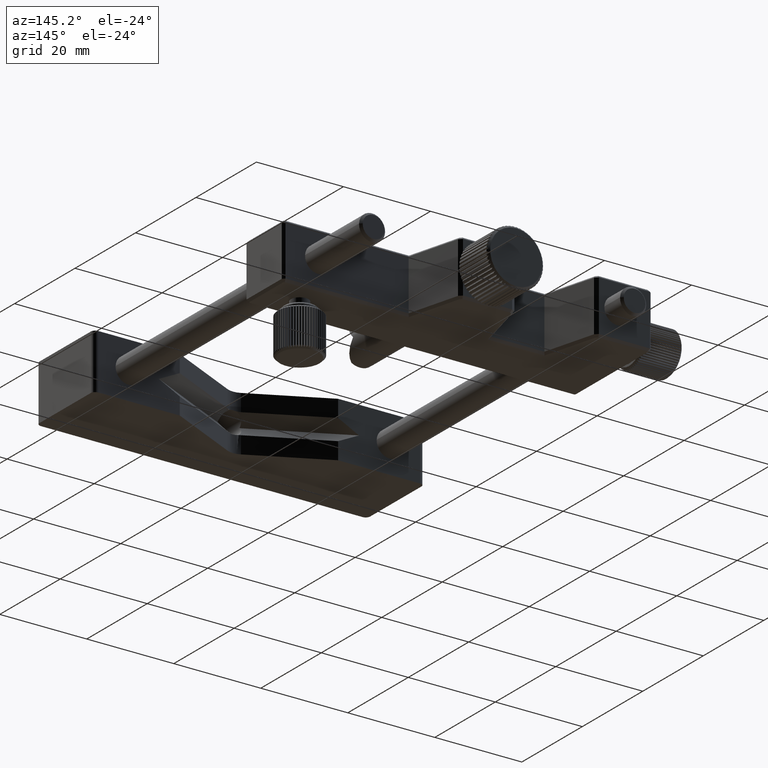
[diagram: clean part render]
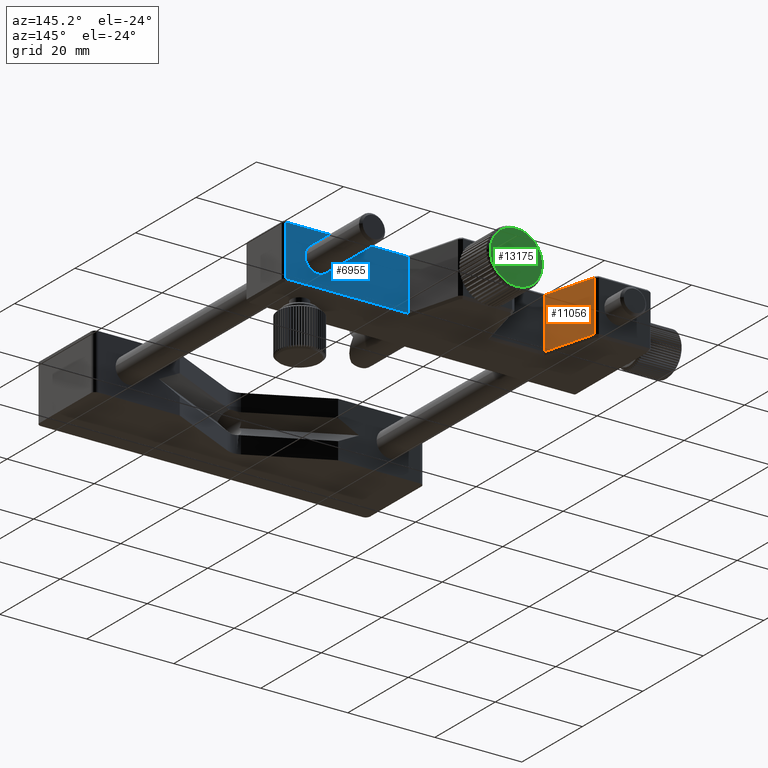
[diagram: same view with three faces highlighted in distinct colors, each labeled with its STEP entity id]
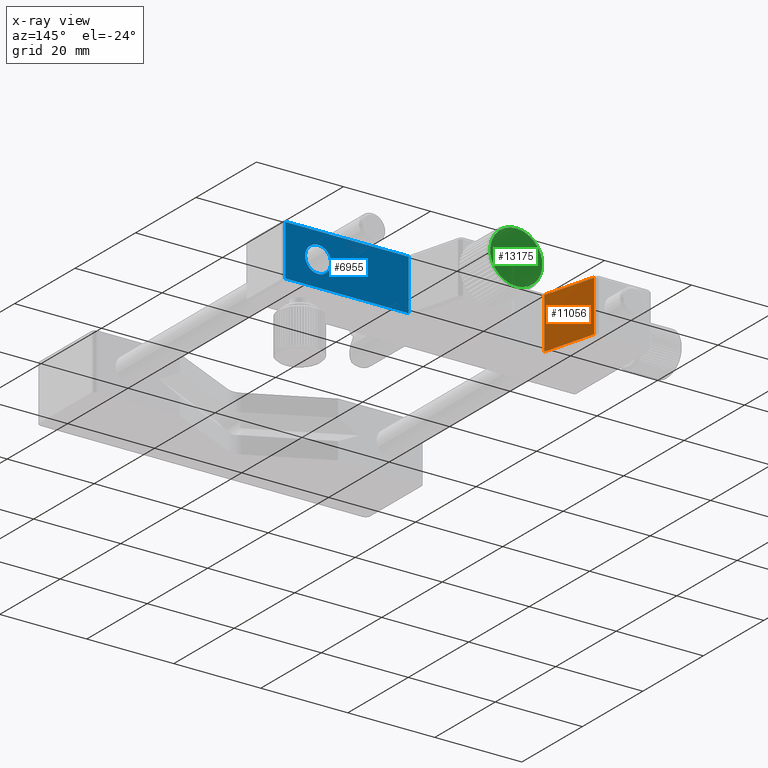
[diagram: x-ray of the same camera — body ghosted, the three highlighted faces saturated]
A machine part, auxiliary view with three faces highlighted in distinct colors.
The next image is the same camera in x-ray (body ghosted, the three faces saturated) — at least one of them is partly hidden behind the body in this view.
Their STEP definitions:

[orange] entity #11056 — the highlighted planar face has unit normal (0.9685, 0.2488, -0).
#597 = DIRECTION ( 'NONE',  ( 0.9685456737916890990, 0.2488358450452889947, -7.321851598623130857E-17 ) ) ;
#710 = LINE ( 'NONE', #6671, #1872 ) ;
#748 = ORIENTED_EDGE ( 'NONE', *, *, #1622, .T. ) ;
#797 = DIRECTION ( 'NONE',  ( 0.2488358450452889947, -0.9685456737916890990, -3.081487911019580102E-33 ) ) ;
#1063 = VERTEX_POINT ( 'NONE', #11455 ) ;
#1502 = PLANE ( 'NONE',  #6892 ) ;
#1622 = EDGE_CURVE ( 'NONE', #1063, #14236, #12075, .T. ) ;
#1646 = ORIENTED_EDGE ( 'NONE', *, *, #3456, .F. ) ;
#1811 = FACE_OUTER_BOUND ( 'NONE', #9658, .T. ) ;
#1872 = VECTOR ( 'NONE', #8064, 1000.000000000000000 ) ;
#2453 = DIRECTION ( 'NONE',  ( -0.2488358450452889947, 0.9685456737916890990, 3.081487911019580102E-33 ) ) ;
#2850 = LINE ( 'NONE', #7826, #9342 ) ;
#3151 = VECTOR ( 'NONE', #2453, 1000.000000000000000 ) ;
#3456 = EDGE_CURVE ( 'NONE', #4336, #14236, #710, .T. ) ;
#4336 = VERTEX_POINT ( 'NONE', #9386 ) ;
#4738 = CARTESIAN_POINT ( 'NONE',  ( -51.41388888600069862, 69.11599243470411125, -5.850000000000000533 ) ) ;
#6089 = LINE ( 'NONE', #11142, #11647 ) ;
#6671 = CARTESIAN_POINT ( 'NONE',  ( -51.41388888600069862, 69.11599243470411125, 6.349999999999999645 ) ) ;
#6795 = CARTESIAN_POINT ( 'NONE',  ( -51.41388888600069862, 69.11599243470411125, 6.349999999999999645 ) ) ;
#6892 = AXIS2_PLACEMENT_3D ( 'NONE', #6795, #597, #15114 ) ;
#7826 = CARTESIAN_POINT ( 'NONE',  ( -51.41388888600069862, 69.11599243470411125, 5.850000000000000533 ) ) ;
#8064 = DIRECTION ( 'NONE',  ( -1.110223024625159992E-16, 1.378887143529729752E-16, -1.000000000000000000 ) ) ;
#9212 = CARTESIAN_POINT ( 'NONE',  ( -51.41388888600069862, 69.11599243470411125, -5.850000000000000533 ) ) ;
#9337 = EDGE_CURVE ( 'NONE', #15505, #1063, #6089, .T. ) ;
#9342 = VECTOR ( 'NONE', #797, 1000.000000000000000 ) ;
#9386 = CARTESIAN_POINT ( 'NONE',  ( -51.41388888600069862, 69.11599243470411125, 5.850000000000000533 ) ) ;
#9658 = EDGE_LOOP ( 'NONE', ( #1646, #14551, #10141, #748 ) ) ;
#9932 = DIRECTION ( 'NONE',  ( -1.110223024625159992E-16, 1.378887143529729752E-16, -1.000000000000000000 ) ) ;
#10141 = ORIENTED_EDGE ( 'NONE', *, *, #9337, .T. ) ;
#10309 = EDGE_CURVE ( 'NONE', #4336, #15505, #2850, .T. ) ;
#10341 = CARTESIAN_POINT ( 'NONE',  ( -48.33676122642629736, 57.13886477512959772, 5.850000000000000533 ) ) ;
#11056 = ADVANCED_FACE ( 'NONE', ( #1811 ), #1502, .T. ) ;
#11142 = CARTESIAN_POINT ( 'NONE',  ( -48.33676122642629736, 57.13886477512959772, 6.349999999999999645 ) ) ;
#11455 = CARTESIAN_POINT ( 'NONE',  ( -48.33676122642629736, 57.13886477512959772, -5.850000000000000533 ) ) ;
#11647 = VECTOR ( 'NONE', #9932, 1000.000000000000000 ) ;
#12075 = LINE ( 'NONE', #4738, #3151 ) ;
#14236 = VERTEX_POINT ( 'NONE', #9212 ) ;
#14551 = ORIENTED_EDGE ( 'NONE', *, *, #10309, .T. ) ;
#15114 = DIRECTION ( 'NONE',  ( 0.000000000000000000, -2.942442475395989924E-16, -1.000000000000000000 ) ) ;
#15505 = VERTEX_POINT ( 'NONE', #10341 ) ;

[blue] entity #6955 — the highlighted planar face has unit normal (0, 1, 0).
#367 = VERTEX_POINT ( 'NONE', #4146 ) ;
#857 = VERTEX_POINT ( 'NONE', #1094 ) ;
#954 = LINE ( 'NONE', #14480, #12359 ) ;
#1001 = CARTESIAN_POINT ( 'NONE',  ( -17.13676122642620214, 57.13886477512959772, 5.850000000000000533 ) ) ;
#1094 = CARTESIAN_POINT ( 'NONE',  ( 0.6665848719893747720, 57.13886477512959772, -0.1416523706789316328 ) ) ;
#1966 = DIRECTION ( 'NONE',  ( 0.000000000000000000, 0.000000000000000000, 1.000000000000000000 ) ) ;
#2595 = EDGE_CURVE ( 'NONE', #367, #2629, #6393, .T. ) ;
#2629 = VERTEX_POINT ( 'NONE', #13871 ) ;
#2940 = EDGE_CURVE ( 'NONE', #11303, #13584, #13934, .T. ) ;
#3457 = ORIENTED_EDGE ( 'NONE', *, *, #2595, .T. ) ;
#3782 = CARTESIAN_POINT ( 'NONE',  ( 11.16323877357379857, 57.13886477512959772, 6.349999999999999645 ) ) ;
#4146 = CARTESIAN_POINT ( 'NONE',  ( 11.16323877357379857, 57.13886477512959772, 5.850000000000000533 ) ) ;
#4162 = ORIENTED_EDGE ( 'NONE', *, *, #6054, .F. ) ;
#4940 = ORIENTED_EDGE ( 'NONE', *, *, #8109, .T. ) ;
#4963 = EDGE_LOOP ( 'NONE', ( #7676, #4162 ) ) ;
#5808 = CARTESIAN_POINT ( 'NONE',  ( 6.659892675158185504, 57.13886477512959772, 0.1416523706789302450 ) ) ;
#5929 = DIRECTION ( 'NONE',  ( 1.000000000000000000, -1.267838108800509999E-32, 0.000000000000000000 ) ) ;
#6024 = VECTOR ( 'NONE', #6632, 1000.000000000000000 ) ;
#6054 = EDGE_CURVE ( 'NONE', #9978, #857, #9229, .T. ) ;
#6123 = CARTESIAN_POINT ( 'NONE',  ( -17.13676122642620214, 57.13886477512959772, -5.850000000000000533 ) ) ;
#6393 = LINE ( 'NONE', #12581, #6024 ) ;
#6632 = DIRECTION ( 'NONE',  ( -1.110223024625159992E-16, 1.378887143529729752E-16, -1.000000000000000000 ) ) ;
#6955 = ADVANCED_FACE ( 'NONE', ( #13632, #7462 ), #9985, .T. ) ;
#7055 = DIRECTION ( 'NONE',  ( 1.267838108800509999E-32, 1.000000000000000000, 1.378887143529729752E-16 ) ) ;
#7418 = AXIS2_PLACEMENT_3D ( 'NONE', #8334, #15739, #1966 ) ;
#7452 = CARTESIAN_POINT ( 'NONE',  ( -17.13676122642620214, 57.13886477512959772, -5.850000000000000533 ) ) ;
#7462 = FACE_OUTER_BOUND ( 'NONE', #11686, .T. ) ;
#7676 = ORIENTED_EDGE ( 'NONE', *, *, #8563, .F. ) ;
#7677 = DIRECTION ( 'NONE',  ( -1.110223024625159992E-16, 1.378887143529729752E-16, -1.000000000000000000 ) ) ;
#8109 = EDGE_CURVE ( 'NONE', #11303, #367, #954, .T. ) ;
#8334 = CARTESIAN_POINT ( 'NONE',  ( 3.663238773573780360, 57.13886477512959772, -8.896320514301608892E-16 ) ) ;
#8394 = ORIENTED_EDGE ( 'NONE', *, *, #15132, .T. ) ;
#8563 = EDGE_CURVE ( 'NONE', #857, #9978, #14492, .T. ) ;
#9229 = CIRCLE ( 'NONE', #7418, 3.000000000000000000 ) ;
#9978 = VERTEX_POINT ( 'NONE', #5808 ) ;
#9985 = PLANE ( 'NONE',  #10047 ) ;
#10047 = AXIS2_PLACEMENT_3D ( 'NONE', #3782, #12421, #13714 ) ;
#10289 = CARTESIAN_POINT ( 'NONE',  ( -17.13676122642620214, 57.13886477512959772, 6.349999999999999645 ) ) ;
#11092 = DIRECTION ( 'NONE',  ( -1.000000000000000000, 1.267838108800509999E-32, 0.000000000000000000 ) ) ;
#11248 = LINE ( 'NONE', #6123, #13990 ) ;
#11303 = VERTEX_POINT ( 'NONE', #1001 ) ;
#11686 = EDGE_LOOP ( 'NONE', ( #14087, #4940, #3457, #8394 ) ) ;
#12027 = CARTESIAN_POINT ( 'NONE',  ( 3.663238773573780360, 57.13886477512959772, -8.896320514301608892E-16 ) ) ;
#12359 = VECTOR ( 'NONE', #5929, 1000.000000000000000 ) ;
#12421 = DIRECTION ( 'NONE',  ( 1.267838108800509999E-32, 1.000000000000000000, 1.378887143529729752E-16 ) ) ;
#12581 = CARTESIAN_POINT ( 'NONE',  ( 11.16323877357379857, 57.13886477512959772, 6.349999999999999645 ) ) ;
#13584 = VERTEX_POINT ( 'NONE', #7452 ) ;
#13632 = FACE_BOUND ( 'NONE', #4963, .T. ) ;
#13705 = AXIS2_PLACEMENT_3D ( 'NONE', #12027, #7055, #14791 ) ;
#13714 = DIRECTION ( 'NONE',  ( 0.000000000000000000, 1.378887143529729752E-16, -1.000000000000000000 ) ) ;
#13871 = CARTESIAN_POINT ( 'NONE',  ( 11.16323877357379857, 57.13886477512959772, -5.850000000000000533 ) ) ;
#13934 = LINE ( 'NONE', #10289, #14085 ) ;
#13990 = VECTOR ( 'NONE', #11092, 1000.000000000000000 ) ;
#14085 = VECTOR ( 'NONE', #7677, 1000.000000000000000 ) ;
#14087 = ORIENTED_EDGE ( 'NONE', *, *, #2940, .F. ) ;
#14480 = CARTESIAN_POINT ( 'NONE',  ( 11.16323877357379857, 57.13886477512959772, 5.850000000000000533 ) ) ;
#14492 = CIRCLE ( 'NONE', #13705, 3.000000000000000000 ) ;
#14791 = DIRECTION ( 'NONE',  ( 0.000000000000000000, 0.000000000000000000, 1.000000000000000000 ) ) ;
#15132 = EDGE_CURVE ( 'NONE', #2629, #13584, #11248, .T. ) ;
#15739 = DIRECTION ( 'NONE',  ( 1.267838108800509999E-32, 1.000000000000000000, 1.378887143529729752E-16 ) ) ;

[green] entity #13175 — the highlighted planar face has unit normal (0, 1, 0).
#190 = VERTEX_POINT ( 'NONE', #9882 ) ;
#1186 = CIRCLE ( 'NONE', #2230, 6.000000000000000000 ) ;
#2230 = AXIS2_PLACEMENT_3D ( 'NONE', #13022, #5451, #10427 ) ;
#3569 = CARTESIAN_POINT ( 'NONE',  ( -26.48939901180229839, 79.28886477512959630, 3.994145722442110241E-15 ) ) ;
#3738 = AXIS2_PLACEMENT_3D ( 'NONE', #7985, #15465, #4301 ) ;
#4301 = DIRECTION ( 'NONE',  ( 0.000000000000000000, 0.000000000000000000, 1.000000000000000000 ) ) ;
#4811 = EDGE_CURVE ( 'NONE', #10140, #190, #7392, .T. ) ;
#5451 = DIRECTION ( 'NONE',  ( 1.057907825259890019E-32, 1.000000000000000000, 1.378887143529729752E-16 ) ) ;
#5772 = PLANE ( 'NONE',  #7200 ) ;
#5936 = DIRECTION ( 'NONE',  ( 0.000000000000000000, 1.378887143529729752E-16, -1.000000000000000000 ) ) ;
#6023 = EDGE_LOOP ( 'NONE', ( #8263, #7785 ) ) ;
#7200 = AXIS2_PLACEMENT_3D ( 'NONE', #3569, #7248, #5936 ) ;
#7248 = DIRECTION ( 'NONE',  ( 1.057907825259890019E-32, 1.000000000000000000, 1.378887143529729752E-16 ) ) ;
#7392 = CIRCLE ( 'NONE', #3738, 6.000000000000000000 ) ;
#7785 = ORIENTED_EDGE ( 'NONE', *, *, #4811, .T. ) ;
#7985 = CARTESIAN_POINT ( 'NONE',  ( -26.48939901180229839, 79.28886477512959630, 3.994145722442110241E-15 ) ) ;
#8263 = ORIENTED_EDGE ( 'NONE', *, *, #13103, .T. ) ;
#9882 = CARTESIAN_POINT ( 'NONE',  ( -26.48939901180229839, 79.28886477512959630, -5.999999999999995559 ) ) ;
#10140 = VERTEX_POINT ( 'NONE', #11411 ) ;
#10427 = DIRECTION ( 'NONE',  ( 0.000000000000000000, 0.000000000000000000, 1.000000000000000000 ) ) ;
#11411 = CARTESIAN_POINT ( 'NONE',  ( -26.48939901180229839, 79.28886477512959630, 6.000000000000004441 ) ) ;
#12290 = FACE_OUTER_BOUND ( 'NONE', #6023, .T. ) ;
#13022 = CARTESIAN_POINT ( 'NONE',  ( -26.48939901180229839, 79.28886477512959630, 3.994145722442110241E-15 ) ) ;
#13103 = EDGE_CURVE ( 'NONE', #190, #10140, #1186, .T. ) ;
#13175 = ADVANCED_FACE ( 'NONE', ( #12290 ), #5772, .T. ) ;
#15465 = DIRECTION ( 'NONE',  ( 1.057907825259890019E-32, 1.000000000000000000, 1.378887143529729752E-16 ) ) ;